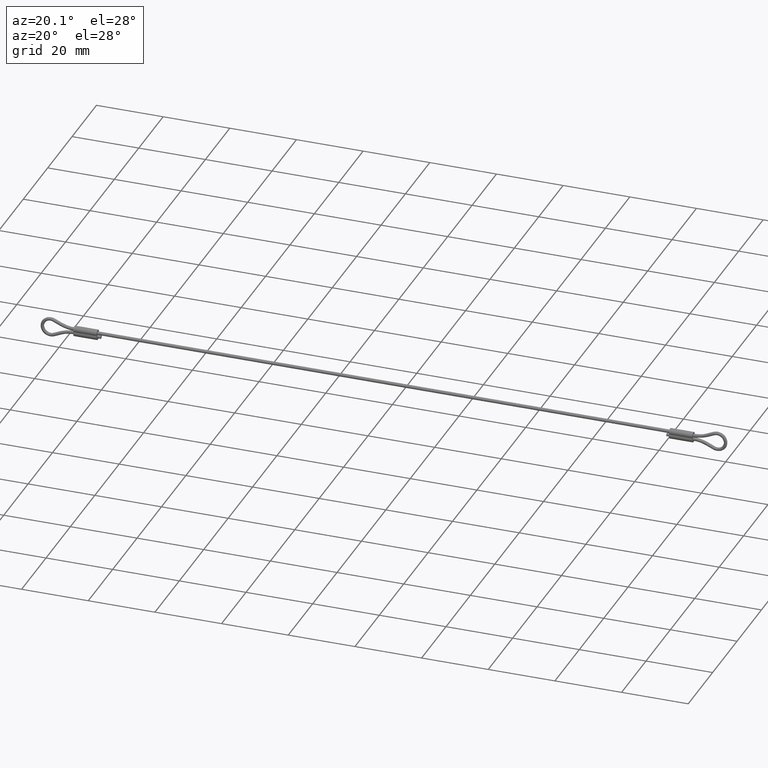
[diagram: clean part render]
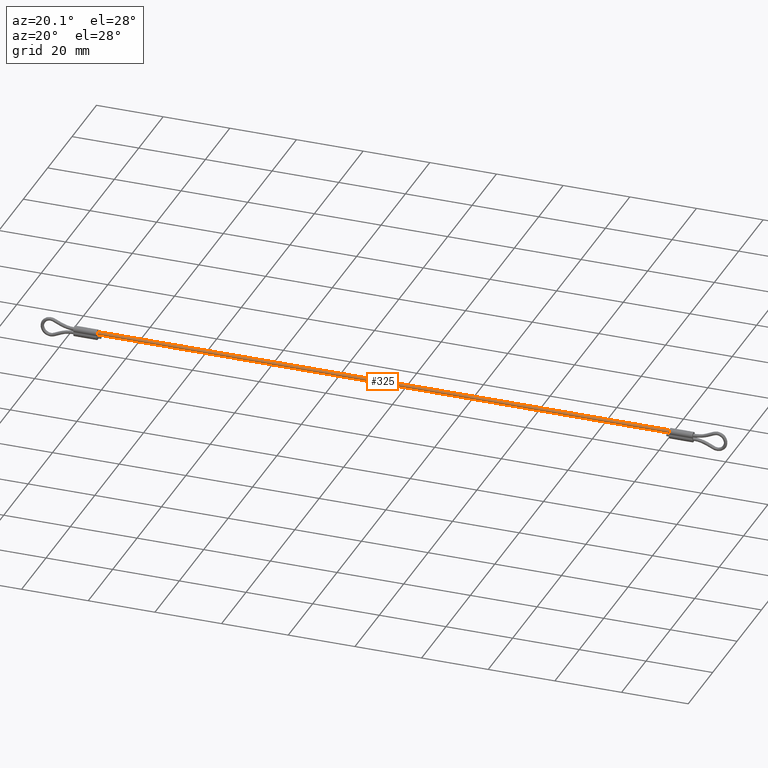
[diagram: same view with one face highlighted and labeled with its STEP entity id]
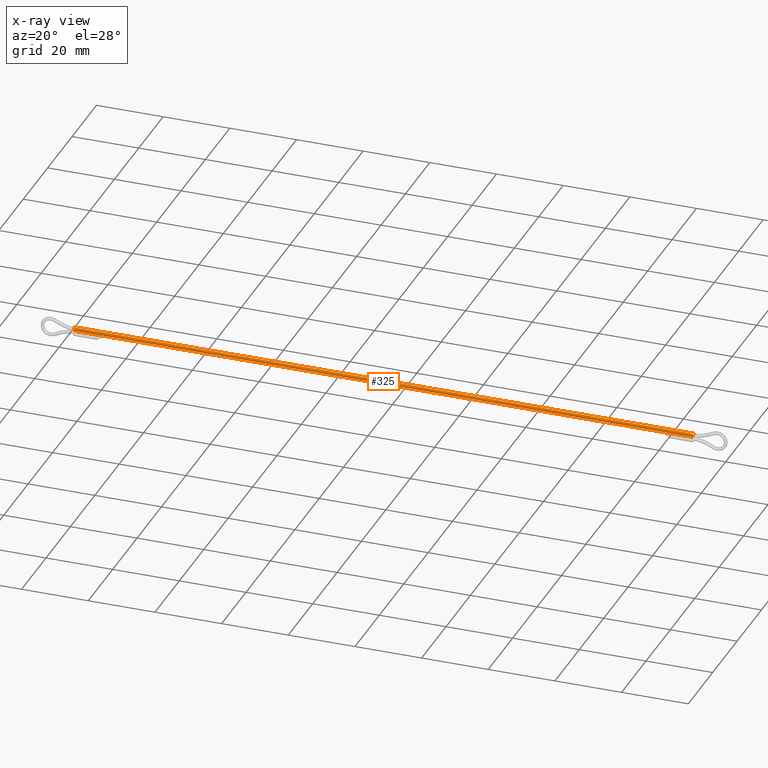
[diagram: x-ray of the same camera — body ghosted, the highlighted face saturated]
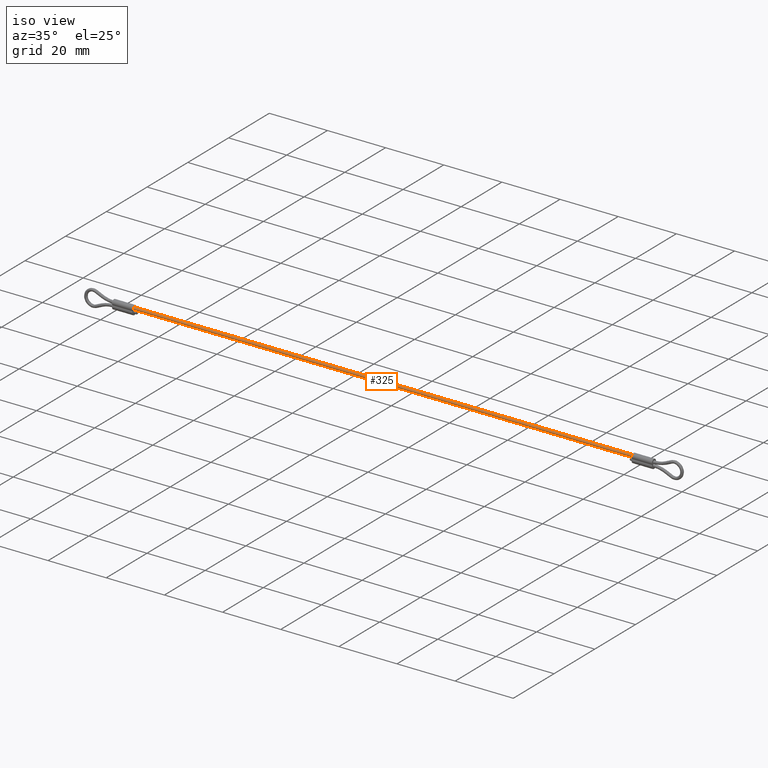
[diagram: same view with one face highlighted and labeled with its STEP entity id]
A machine part, auxiliary view. The second image highlights one B-rep face of the part: STEP entity #325.
The next image is the same camera in x-ray: the body ghosted, the highlighted face saturated — about 0% of this face is hidden behind the body in this view.
A second angle (iso view) of the same face is appended — the face is thin or edge-on in the first view.
In plain terms, the highlighted cylindrical surface (edge-blend (fillet) strip) has radius 0.5 mm, axis along (-1, 0, -0).
Its self-contained STEP definition (entity closure, byte-faithful):
#325=ADVANCED_FACE('',(#463),#462,.T.);
#462=CYLINDRICAL_SURFACE('',#896,5.00000000000E-01);
#463=FACE_OUTER_BOUND('',#897,.T.);
#893=CARTESIAN_POINT('',(-1.02500000000E+02,0.00000000000E+00,5.49999999986E-01));
#894=DIRECTION('',(-1.00000000000E+00,0.00000000000E+00,-2.35659389349E-14));
#895=DIRECTION('',(-2.35659389349E-14,-0.00000000000E+00,1.00000000000E+00));
#896=AXIS2_PLACEMENT_3D('',#893,#894,#895);
#897=EDGE_LOOP('',(#1218,#1219,#1220,#1221));
#1218=ORIENTED_EDGE('',*,*,#1360,.T.);
#1219=ORIENTED_EDGE('',*,*,#1357,.T.);
#1220=ORIENTED_EDGE('',*,*,#1361,.F.);
#1221=ORIENTED_EDGE('',*,*,#1359,.F.);
#1357=EDGE_CURVE('',#1566,#1558,#1567,.T.);
#1359=EDGE_CURVE('',#1573,#1559,#1580,.T.);
#1360=EDGE_CURVE('',#1573,#1566,#1586,.T.);
#1361=EDGE_CURVE('',#1559,#1558,#1592,.T.);
#1558=VERTEX_POINT('',#2026);
#1559=VERTEX_POINT('',#2027);
#1566=VERTEX_POINT('',#2032);
#1567=(BOUNDED_CURVE() B_SPLINE_CURVE(1,(#2033,#2034),.UNSPECIFIED.,.F.,.F.) B_SPLINE_CURVE_WITH_KNOTS((2,2),(4.86071741209E-02,9.51392825895E-01),.UNSPECIFIED.) CURVE() GEOMETRIC_REPRESENTATION_ITEM() RATIONAL_B_SPLINE_CURVE((1.00000000000E+00,1.00000000000E+00)) REPRESENTATION_ITEM('') );
#1573=VERTEX_POINT('',#2035);
#1580=(BOUNDED_CURVE() B_SPLINE_CURVE(1,(#2040,#2041),.UNSPECIFIED.,.F.,.F.) B_SPLINE_CURVE_WITH_KNOTS((2,2),(4.86071741510E-02,9.51392825849E-01),.UNSPECIFIED.) CURVE() GEOMETRIC_REPRESENTATION_ITEM() RATIONAL_B_SPLINE_CURVE((7.50000000000E-01,7.50000000000E-01)) REPRESENTATION_ITEM('') );
#1586=CIRCLE('',#2045,5.00000000000E-01);
#1592=CIRCLE('',#2049,5.00000000000E-01);
#2026=CARTESIAN_POINT('',(-1.95365473818E+02,0.00000000000E+00,1.04999999998E+00));
#2027=CARTESIAN_POINT('',(-1.95365473818E+02,5.55111512313E-17,4.99999999840E-02));
#2032=CARTESIAN_POINT('',(-9.63452618186E+00,0.00000000000E+00,1.04999999999E+00));
#2033=CARTESIAN_POINT('',(-9.63452617567E+00,0.00000000000E+00,1.04999999999E+00));
#2034=CARTESIAN_POINT('',(-1.95365473828E+02,0.00000000000E+00,1.04999999998E+00));
#2035=CARTESIAN_POINT('',(-9.63452618186E+00,5.55111512313E-17,4.99999999884E-02));
#2040=CARTESIAN_POINT('',(-9.63452618186E+00,-1.85037170771E-17,4.99999999884E-02));
#2041=CARTESIAN_POINT('',(-1.95365473818E+02,-1.85037170771E-17,4.99999999840E-02));
#2042=CARTESIAN_POINT('',(-9.63452618186E+00,0.00000000000E+00,5.49999999988E-01));
#2043=DIRECTION('',(-1.00000000000E+00,0.00000000000E+00,-2.36271712749E-14));
#2044=DIRECTION('',(-2.36271712749E-14,-1.22460635382E-16,1.00000000000E+00));
#2045=AXIS2_PLACEMENT_3D('',#2042,#2043,#2044);
#2046=CARTESIAN_POINT('',(-1.95365473818E+02,0.00000000000E+00,5.49999999984E-01));
#2047=DIRECTION('',(-1.00000000000E+00,0.00000000000E+00,-2.36271712749E-14));
#2048=DIRECTION('',(-2.36271712749E-14,-1.22460635382E-16,1.00000000000E+00));
#2049=AXIS2_PLACEMENT_3D('',#2046,#2047,#2048);